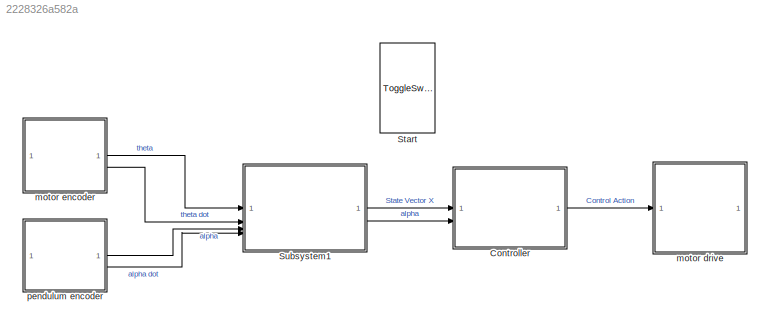
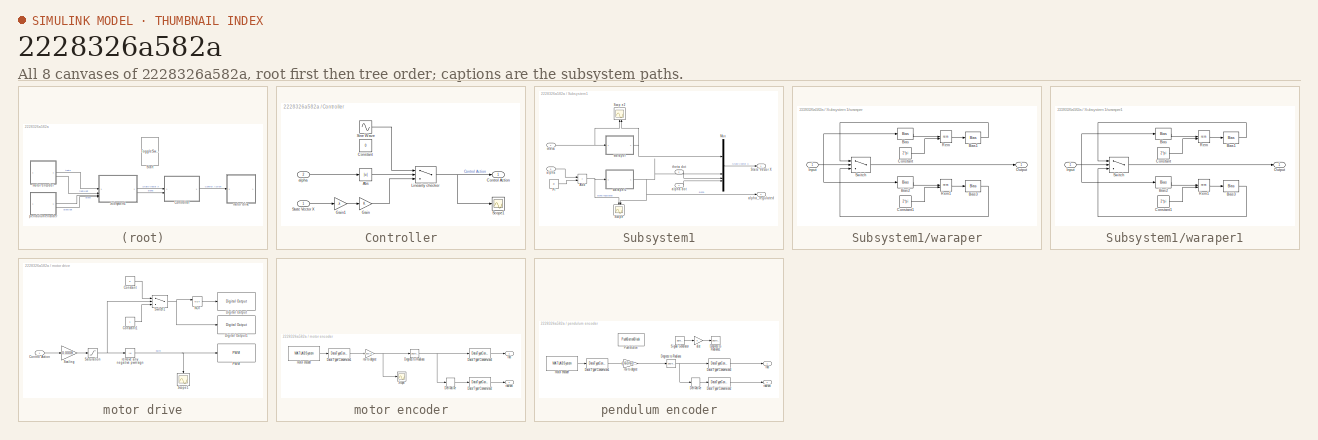
[diagram: thumbnail index - all 8 canvases of the model, root first then tree order]
MODEL slx_2228326a582a
KIND model
CONFIG AbsTol = auto
CONFIG EnableMultiTasking = on
CONFIG FixedStep = auto
CONFIG MaxStep = auto
CONFIG MinStep = auto
CONFIG RelTol = 1e-3
CONFIG SampleTimeConstraint = Unconstrained
CONFIG SolverName = FixedStepAuto
CONFIG StartTime = 0.0
CONFIG StopTime = inf
BLOCK [SubSystem] Controller
BLOCK [Abs] Controller/Abs
  SaturateOnIntegerOverflow = off
BLOCK [Constant] Controller/Constant
  Value = 0
BLOCK [Outport] Controller/Control Action 
BLOCK [Gain] Controller/Gain
BLOCK [Gain] Controller/Gain1
  Gain = -k
  Multiplication = Matrix(K*u)
BLOCK [Switch] Controller/Linearity checker
  Criteria = u2 > Threshold
  InputSameDT = off
  SaturateOnIntegerOverflow = off
  Threshold = pi/7
BLOCK [Scope] Controller/Scope1
  Floating = off
  NumInputPorts = 1
  ScopeSpecificationString = Simulink.scopes.TimeScopeBlockCfg('CurrentConfiguration', extmgr.ConfigurationSet(extmgr.Configuration('Core','General UI',true),extmgr.Configuration('Core','Source UI',true),extmgr.Configuration('Sources','WiredSimulink',true,'DataLoggingVariableName','ScopeData2'),extmgr.Configuration('Visuals','Time Domain',true,'SerializedDisplays',{struct('MinYLimReal','-1.00000','MaxYLimReal','1.00000','YLab...<+1396ch>
BLOCK [Sin] Controller/Sine Wave
  Amplitude = 255/0.0008
  Frequency = 20
  SampleTime = 0
BLOCK [Inport] Controller/State Vector X
BLOCK [Inport] Controller/alpha
  Port = 2
BLOCK [ToggleSwitchBlock] Start
  LabelPosition = Hide
  NameLocation = top
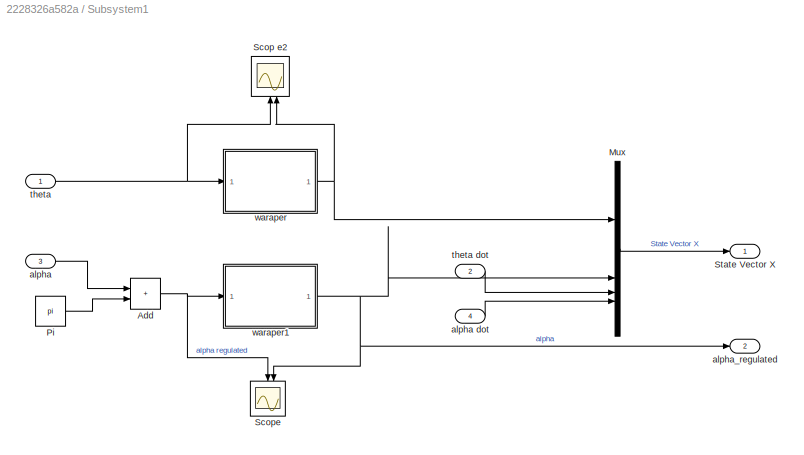
BLOCK [SubSystem] Subsystem1
BLOCK [Sum] Subsystem1/Add
  IconShape = rectangular
BLOCK [Mux] Subsystem1/Mux
  DisplayOption = bar
BLOCK [Constant] Subsystem1/Pi
  OutDataTypeStr = Inherit: Inherit via back propagation
  Value = pi
BLOCK [Scope] Subsystem1/Scop e2
  Floating = off
  NameLocation = right
  NumInputPorts = 2
  ScopeSpecificationString = Simulink.scopes.TimeScopeBlockCfg('CurrentConfiguration', extmgr.ConfigurationSet(extmgr.Configuration('Core','General UI',true),extmgr.Configuration('Core','Source UI',true),extmgr.Configuration('Sources','WiredSimulink',true,'DataLoggingVariableName','ScopeData1'),extmgr.Configuration('Visuals','Time Domain',true,'SerializedDisplays',{struct('MinYLimReal','-1.00000','MaxYLimReal','1.00000','YLab...<+1987ch>
BLOCK [Scope] Subsystem1/Scope
  Floating = off
  NameLocation = right
  NumInputPorts = 2
  ScopeSpecificationString = Simulink.scopes.TimeScopeBlockCfg('CurrentConfiguration', extmgr.ConfigurationSet(extmgr.Configuration('Core','General UI',true),extmgr.Configuration('Core','Source UI',true),extmgr.Configuration('Sources','WiredSimulink',true),extmgr.Configuration('Visuals','Time Domain',true,'SerializedDisplays',{struct('MinYLimReal','2.14421','MaxYLimReal','4.14421','YLabelReal','','MinYLimMag','2.14421','MaxYL...<+1982ch>
BLOCK [Outport] Subsystem1/State Vector X
BLOCK [Inport] Subsystem1/alpha
  Port = 3
BLOCK [Inport] Subsystem1/alpha dot
  Port = 4
BLOCK [Outport] Subsystem1/alpha_regulated 
  Port = 2
BLOCK [Inport] Subsystem1/theta
BLOCK [Inport] Subsystem1/theta dot
  Port = 2
BLOCK [SubSystem] Subsystem1/waraper
BLOCK [Bias] Subsystem1/waraper/Bias
  Bias = pi
  SaturateOnIntegerOverflow = off
BLOCK [Bias] Subsystem1/waraper/Bias1
  Bias = -pi
  SaturateOnIntegerOverflow = off
BLOCK [Bias] Subsystem1/waraper/Bias2
  Bias = -pi
  SaturateOnIntegerOverflow = off
BLOCK [Bias] Subsystem1/waraper/Bias3
  Bias = +pi
  SaturateOnIntegerOverflow = off
BLOCK [Constant] Subsystem1/waraper/Constant
  Value = 2*pi
BLOCK [Constant] Subsystem1/waraper/Constant1
  Value = 2*pi
BLOCK [Inport] Subsystem1/waraper/Input
BLOCK [Outport] Subsystem1/waraper/Output
BLOCK [Math] Subsystem1/waraper/Rem
  Operator = rem
BLOCK [Math] Subsystem1/waraper/Rem1
  Operator = rem
BLOCK [Switch] Subsystem1/waraper/Switch
  Criteria = u2 > Threshold
  InputSameDT = off
  SaturateOnIntegerOverflow = off
BLOCK [SubSystem] Subsystem1/waraper1
BLOCK [Bias] Subsystem1/waraper1/Bias
  Bias = pi
  SaturateOnIntegerOverflow = off
BLOCK [Bias] Subsystem1/waraper1/Bias1
  Bias = -pi
  SaturateOnIntegerOverflow = off
BLOCK [Bias] Subsystem1/waraper1/Bias2
  Bias = -pi
  SaturateOnIntegerOverflow = off
BLOCK [Bias] Subsystem1/waraper1/Bias3
  Bias = +pi
  SaturateOnIntegerOverflow = off
BLOCK [Constant] Subsystem1/waraper1/Constant
  Value = 2*pi
BLOCK [Constant] Subsystem1/waraper1/Constant1
  Value = 2*pi
BLOCK [Inport] Subsystem1/waraper1/Input
BLOCK [Outport] Subsystem1/waraper1/Output
BLOCK [Math] Subsystem1/waraper1/Rem
  Operator = rem
BLOCK [Math] Subsystem1/waraper1/Rem1
  Operator = rem
BLOCK [Switch] Subsystem1/waraper1/Switch
  InputSameDT = off
  SaturateOnIntegerOverflow = off
BLOCK [SubSystem] motor drive
BLOCK [Constant] motor drive/Constant
  Value = 0
BLOCK [Constant] motor drive/Constant1
BLOCK [Inport] motor drive/Control Action
BLOCK [Reference] motor drive/Digital Output  REF=arduinolib/Digital Output
  SourceBlock = arduinolib/Digital Output
  SourceType = Arduino Digital Output
BLOCK [Reference] motor drive/Digital Output1  REF=arduinolib/Digital Output
  SourceBlock = arduinolib/Digital Output
  SourceType = Arduino Digital Output
BLOCK [Logic] motor drive/NOT
  AllPortsSameDT = off
  IconShape = distinctive
  Operator = NOT
  OutDataTypeStr = boolean
BLOCK [Reference] motor drive/PWM  REF=arduinolib/PWM
  SourceBlock = arduinolib/PWM
  SourceType = Arduino PWM
BLOCK [Saturate] motor drive/Saturation
  LowerLimit = -255
  UpperLimit = 255
BLOCK [Gain] motor drive/Scaling
  Gain = 0.0008
BLOCK [Scope] motor drive/Scope1
  Floating = off
  NameLocation = left
  NumInputPorts = 1
  ScopeSpecificationString = Simulink.scopes.TimeScopeBlockCfg('CurrentConfiguration', extmgr.ConfigurationSet(extmgr.Configuration('Core','General UI',true),extmgr.Configuration('Core','Source UI',true),extmgr.Configuration('Sources','WiredSimulink',true,'DataLoggingVariableName','ScopeData2'),extmgr.Configuration('Visuals','Time Domain',true,'SerializedDisplays',{struct('MinYLimReal','-1.00000','MaxYLimReal','1.00000','YLab...<+1515ch>
BLOCK [Switch] motor drive/Switch1
  InputSameDT = off
  SaturateOnIntegerOverflow = off
BLOCK [Abs] motor drive/remove any negative pwm sign
  SaturateOnIntegerOverflow = off
BLOCK [SubSystem] motor encoder
BLOCK [DataTypeConversion] motor encoder/Data Type Conversion1
  OutDataTypeStr = double
  RndMeth = Floor
  SaturateOnIntegerOverflow = off
BLOCK [DataTypeConversion] motor encoder/Data Type Conversion2
  RndMeth = Floor
  SaturateOnIntegerOverflow = off
BLOCK [DataTypeConversion] motor encoder/Data Type Conversion3
  RndMeth = Floor
  SaturateOnIntegerOverflow = off
BLOCK [Reference] motor encoder/Degrees to Radians  REF=simulink_extras/Transformations/Degrees to
Radians
  SourceBlock = simulink_extras/Transformations/Degrees to\nRadians
  SourceType = DegreesToRadians
BLOCK [Derivative] motor encoder/Derivative
BLOCK [Scope] motor encoder/Scope
  Floating = off
  NumInputPorts = 1
  ScopeSpecificationString = Simulink.scopes.TimeScopeBlockCfg('CurrentConfiguration', extmgr.ConfigurationSet(extmgr.Configuration('Core','General UI',true),extmgr.Configuration('Core','Source UI',true),extmgr.Configuration('Sources','WiredSimulink',true,'DataLoggingVariableName','ScopeData1'),extmgr.Configuration('Visuals','Time Domain',true,'SerializedDisplays',{struct('MinYLimReal','-1.00000','MaxYLimReal','1.00000','YLab...<+1424ch>
BLOCK [MATLABSystem] motor encoder/motor encoder
  Encoder = 1
  MaskDisplay = disp('Encoder');\nport_label('output',1,'y');
  MaskType = Encoder_arduino
  PinA = 18
  PinB = 19
  SampleTime = 0.001
  System = Encoder_arduino
BLOCK [Outport] motor encoder/rad
BLOCK [Outport] motor encoder/rad//sec
  Port = 2
BLOCK [Gain] motor encoder/rev to degree
  Gain = (360/(500*4))
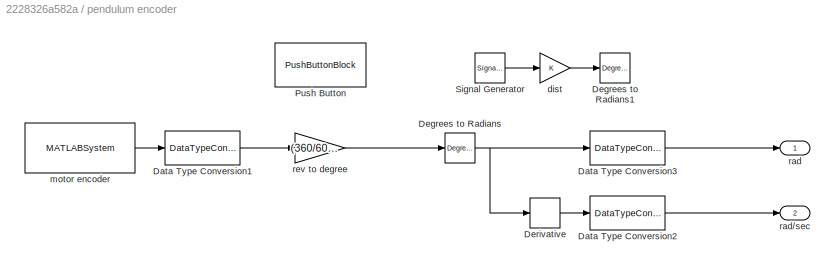
BLOCK [SubSystem] pendulum encoder
BLOCK [DataTypeConversion] pendulum encoder/Data Type Conversion1
  OutDataTypeStr = double
  RndMeth = Floor
  SaturateOnIntegerOverflow = off
BLOCK [DataTypeConversion] pendulum encoder/Data Type Conversion2
  RndMeth = Floor
  SaturateOnIntegerOverflow = off
BLOCK [DataTypeConversion] pendulum encoder/Data Type Conversion3
  RndMeth = Floor
  SaturateOnIntegerOverflow = off
BLOCK [Reference] pendulum encoder/Degrees to Radians  REF=simulink_extras/Transformations/Degrees to
Radians
  SourceBlock = simulink_extras/Transformations/Degrees to\nRadians
  SourceType = DegreesToRadians
BLOCK [Reference] pendulum encoder/Degrees to Radians1  REF=simulink_extras/Transformations/Degrees to
Radians
  Commented = on
  SourceBlock = simulink_extras/Transformations/Degrees to\nRadians
  SourceType = DegreesToRadians
BLOCK [Derivative] pendulum encoder/Derivative
BLOCK [PushButtonBlock] pendulum encoder/Push Button
  Commented = on
  OffValue = 1.000000
BLOCK [SignalGenerator] pendulum encoder/Signal Generator
  Amplitude = 5
  Commented = on
  Frequency = 0.5
  WaveForm = square
BLOCK [Gain] pendulum encoder/dist
  Commented = on
BLOCK [MATLABSystem] pendulum encoder/motor encoder
  Encoder = 0
  MaskDisplay = disp('Encoder');\nport_label('output',1,'y');
  MaskType = Encoder_arduino
  PinA = 2
  PinB = 3
  SampleTime = 0.001
  System = Encoder_arduino
BLOCK [Outport] pendulum encoder/rad
BLOCK [Outport] pendulum encoder/rad//sec
  Port = 2
BLOCK [Gain] pendulum encoder/rev to degree
  Gain = (360/600)/4
LINE Controller/Abs:1 -> Controller/Linearity checker:2
LINE Controller/Gain1:1 -> Controller/Gain:1
LINE Controller/Gain:1 -> Controller/Linearity checker:3
NET Controller/Linearity checker:1 -> Controller/Control Action :1, Controller/Scope1:1
LINE Controller/Sine Wave:1 -> Controller/Linearity checker:1
LINE Controller/State Vector X:1 -> Controller/Gain1:1
LINE Controller/alpha:1 -> Controller/Abs:1
LINE Controller:1 -> motor drive:1
NET Subsystem1/Add:1 -> Subsystem1/Scope:1, Subsystem1/waraper1:1
LINE Subsystem1/Mux:1 -> Subsystem1/State Vector X:1
LINE Subsystem1/Pi:1 -> Subsystem1/Add:2
LINE Subsystem1/alpha dot:1 -> Subsystem1/Mux:4
LINE Subsystem1/alpha:1 -> Subsystem1/Add:1
LINE Subsystem1/theta dot:1 -> Subsystem1/Mux:3
NET Subsystem1/theta:1 -> Subsystem1/Scop e2:1, Subsystem1/waraper:1
LINE Subsystem1/waraper/Bias1:1 -> Subsystem1/waraper/Switch:1
LINE Subsystem1/waraper/Bias2:1 -> Subsystem1/waraper/Rem1:1
LINE Subsystem1/waraper/Bias3:1 -> Subsystem1/waraper/Switch:3
LINE Subsystem1/waraper/Bias:1 -> Subsystem1/waraper/Rem:1
LINE Subsystem1/waraper/Constant1:1 -> Subsystem1/waraper/Rem1:2
LINE Subsystem1/waraper/Constant:1 -> Subsystem1/waraper/Rem:2
NET Subsystem1/waraper/Input:1 -> Subsystem1/waraper/Bias2:1, Subsystem1/waraper/Bias:1, Subsystem1/waraper/Switch:2
LINE Subsystem1/waraper/Rem1:1 -> Subsystem1/waraper/Bias3:1
LINE Subsystem1/waraper/Rem:1 -> Subsystem1/waraper/Bias1:1
LINE Subsystem1/waraper/Switch:1 -> Subsystem1/waraper/Output:1
LINE Subsystem1/waraper1/Bias1:1 -> Subsystem1/waraper1/Switch:1
LINE Subsystem1/waraper1/Bias2:1 -> Subsystem1/waraper1/Rem1:1
LINE Subsystem1/waraper1/Bias3:1 -> Subsystem1/waraper1/Switch:3
LINE Subsystem1/waraper1/Bias:1 -> Subsystem1/waraper1/Rem:1
LINE Subsystem1/waraper1/Constant1:1 -> Subsystem1/waraper1/Rem1:2
LINE Subsystem1/waraper1/Constant:1 -> Subsystem1/waraper1/Rem:2
NET Subsystem1/waraper1/Input:1 -> Subsystem1/waraper1/Bias2:1, Subsystem1/waraper1/Bias:1, Subsystem1/waraper1/Switch:2
LINE Subsystem1/waraper1/Rem1:1 -> Subsystem1/waraper1/Bias3:1
LINE Subsystem1/waraper1/Rem:1 -> Subsystem1/waraper1/Bias1:1
LINE Subsystem1/waraper1/Switch:1 -> Subsystem1/waraper1/Output:1
NET Subsystem1/waraper1:1 -> Subsystem1/Mux:2, Subsystem1/Scope:2, Subsystem1/alpha_regulated :1
NET Subsystem1/waraper:1 -> Subsystem1/Mux:1, Subsystem1/Scop e2:2
LINE Subsystem1:1 -> Controller:1
LINE Subsystem1:2 -> Controller:2
LINE motor drive/Constant1:1 -> motor drive/Switch1:3
LINE motor drive/Constant:1 -> motor drive/Switch1:1
LINE motor drive/Control Action:1 -> motor drive/Scaling:1
LINE motor drive/NOT:1 -> motor drive/Digital Output:1
NET motor drive/Saturation:1 -> motor drive/Switch1:2, motor drive/remove any negative pwm sign:1
LINE motor drive/Scaling:1 -> motor drive/Saturation:1
NET motor drive/Switch1:1 -> motor drive/Digital Output1:1, motor drive/NOT:1
NET motor drive/remove any negative pwm sign:1 -> motor drive/PWM:1, motor drive/Scope1:1
LINE motor encoder/Data Type Conversion1:1 -> motor encoder/rev to degree:1
LINE motor encoder/Data Type Conversion2:1 -> motor encoder/rad//sec:1
LINE motor encoder/Data Type Conversion3:1 -> motor encoder/rad:1
NET motor encoder/Degrees to Radians:1 -> motor encoder/Data Type Conversion3:1, motor encoder/Derivative:1
LINE motor encoder/Derivative:1 -> motor encoder/Data Type Conversion2:1
LINE motor encoder/motor encoder:1 -> motor encoder/Data Type Conversion1:1
NET motor encoder/rev to degree:1 -> motor encoder/Degrees to Radians:1, motor encoder/Scope:1
LINE motor encoder:1 -> Subsystem1:1
LINE motor encoder:2 -> Subsystem1:2
LINE pendulum encoder/Data Type Conversion1:1 -> pendulum encoder/rev to degree:1
LINE pendulum encoder/Data Type Conversion2:1 -> pendulum encoder/rad//sec:1
LINE pendulum encoder/Data Type Conversion3:1 -> pendulum encoder/rad:1
NET pendulum encoder/Degrees to Radians:1 -> pendulum encoder/Data Type Conversion3:1, pendulum encoder/Derivative:1
LINE pendulum encoder/Derivative:1 -> pendulum encoder/Data Type Conversion2:1
LINE pendulum encoder/Signal Generator:1 -> pendulum encoder/dist:1
LINE pendulum encoder/dist:1 -> pendulum encoder/Degrees to Radians1:1
LINE pendulum encoder/motor encoder:1 -> pendulum encoder/Data Type Conversion1:1
LINE pendulum encoder/rev to degree:1 -> pendulum encoder/Degrees to Radians:1
LINE pendulum encoder:1 -> Subsystem1:3
LINE pendulum encoder:2 -> Subsystem1:4
note: NET lines group one-source signal fan-out (src -> all destinations, sorted); 1:1 wires keep LINE
